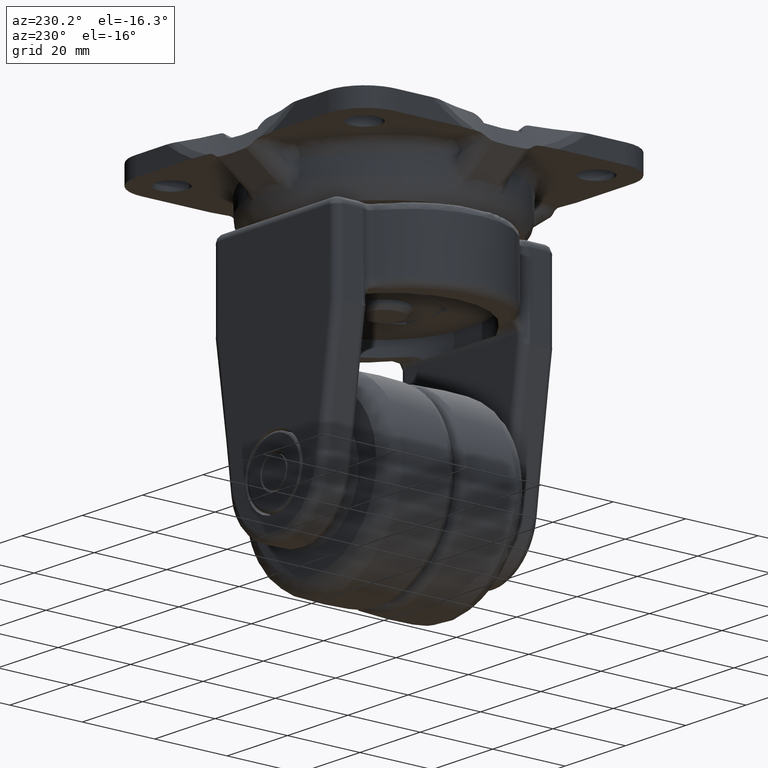
[diagram: clean part render]
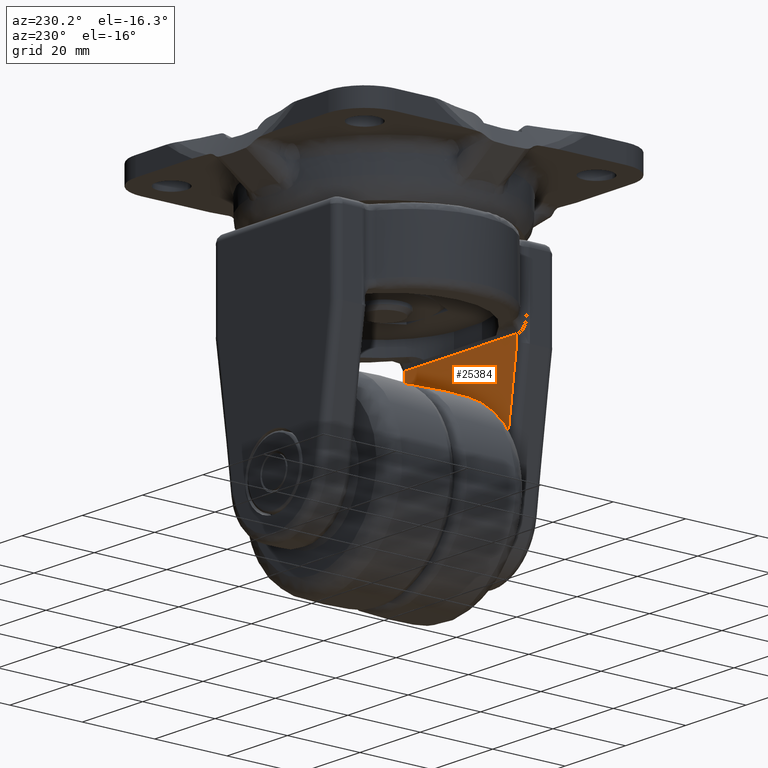
[diagram: same view with one face highlighted and labeled with its STEP entity id]
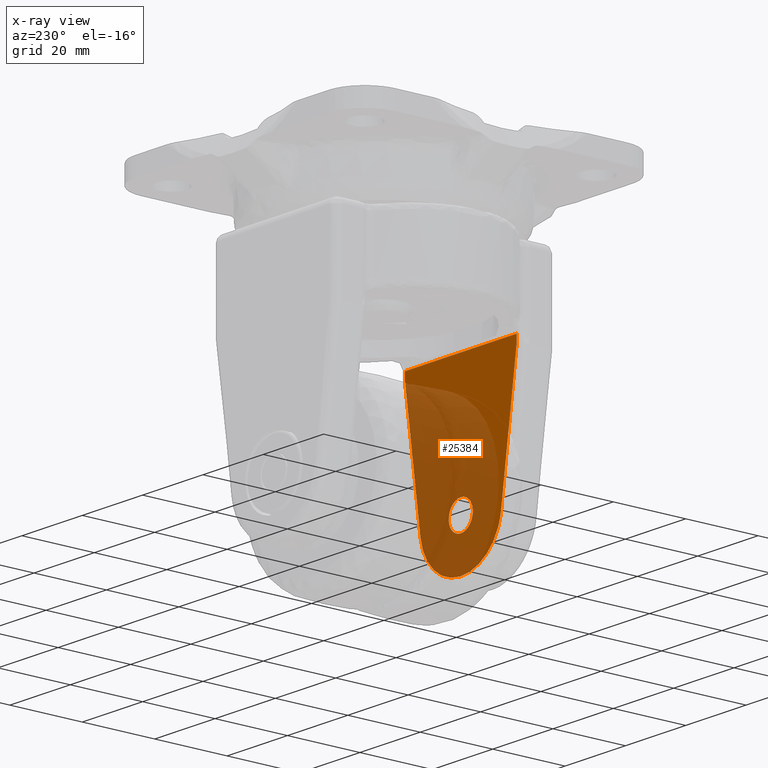
[diagram: x-ray of the same camera — body ghosted, the highlighted face saturated]
A machine part, auxiliary view. The second image highlights one B-rep face of the part: STEP entity #25384.
The next image is the same camera in x-ray: the body ghosted, the highlighted face saturated — about 67% of this face is hidden behind the body in this view.
In plain terms, the highlighted face is a freeform B-spline surface patch.
Its self-contained STEP definition (entity closure, byte-faithful):
#23616=CARTESIAN_POINT('',(18.500000000000000,-21.199999999999999,-20.994779767261100));
#23617=VERTEX_POINT('',#23616);
#24502=CARTESIAN_POINT('',(-3.992539544225150,-21.199999999999999,-56.755811573236052));
#24503=VERTEX_POINT('',#24502);
#24509=CARTESIAN_POINT('',(0.0,-21.199999999999999,-53.000000000000007));
#24510=VERTEX_POINT('',#24509);
#24511=CARTESIAN_POINT('',(0.0,-21.199999999999999,-53.000000000000007));
#24512=CARTESIAN_POINT('',(-3.762829679332612,-21.200000000000003,-53.000000000000128));
#24513=CARTESIAN_POINT('',(-3.992539544225150,-21.199999999999996,-56.755811573236052));
#24521=(BOUNDED_CURVE()B_SPLINE_CURVE(2,(#24511,#24512,#24513),.UNSPECIFIED.,.F.,.U.)B_SPLINE_CURVE_WITH_KNOTS((3,3),(0.500000000000000,0.739333209936624),.UNSPECIFIED.)CURVE()GEOMETRIC_REPRESENTATION_ITEM()RATIONAL_B_SPLINE_CURVE((1.0,0.719603703090825,0.976072572530575))REPRESENTATION_ITEM(''));
#24522=EDGE_CURVE('',#24510,#24503,#24521,.T.);
#24524=CARTESIAN_POINT('',(3.992539544225150,-21.199999999999999,-57.244188426763948));
#24525=VERTEX_POINT('',#24524);
#24526=CARTESIAN_POINT('',(3.992539544225150,-21.199999999999999,-57.244188426763948));
#24527=CARTESIAN_POINT('',(3.999999999995945,-21.200000000000003,-57.122208179471571));
#24528=CARTESIAN_POINT('',(3.999999999996008,-21.199999999999999,-56.999999999999737));
#24529=CARTESIAN_POINT('',(3.999999999998065,-21.200000000000003,-52.999999999999879));
#24530=CARTESIAN_POINT('',(0.0,-21.199999999999999,-53.000000000000007));
#24538=(BOUNDED_CURVE()B_SPLINE_CURVE(2,(#24526,#24527,#24528,#24529,#24530),.UNSPECIFIED.,.F.,.U.)B_SPLINE_CURVE_WITH_KNOTS((3,2,3),(0.239333209936624,0.250000000000000,0.500000000000000),.UNSPECIFIED.)CURVE()GEOMETRIC_REPRESENTATION_ITEM()RATIONAL_B_SPLINE_CURVE((0.976072572530575,0.987503078095722,1.0,0.707106781186548,1.0))REPRESENTATION_ITEM(''));
#24539=EDGE_CURVE('',#24525,#24510,#24538,.T.);
#24569=CARTESIAN_POINT('',(0.0,-21.199999999999999,-61.0));
#24570=VERTEX_POINT('',#24569);
#24571=CARTESIAN_POINT('',(0.0,-21.199999999999999,-61.0));
#24572=CARTESIAN_POINT('',(3.762829679332619,-21.200000000000003,-60.999999999999879));
#24573=CARTESIAN_POINT('',(3.992539544225150,-21.200000000000003,-57.244188426763948));
#24581=(BOUNDED_CURVE()B_SPLINE_CURVE(2,(#24571,#24572,#24573),.UNSPECIFIED.,.F.,.U.)B_SPLINE_CURVE_WITH_KNOTS((3,3),(0.0,0.239333209936625),.UNSPECIFIED.)CURVE()GEOMETRIC_REPRESENTATION_ITEM()RATIONAL_B_SPLINE_CURVE((1.0,0.719603703090825,0.976072572530576))REPRESENTATION_ITEM(''));
#24582=EDGE_CURVE('',#24570,#24525,#24581,.T.);
#24584=CARTESIAN_POINT('',(-3.992539544225150,-21.199999999999996,-56.755811573236052));
#24585=CARTESIAN_POINT('',(-3.999999999995945,-21.199999999999999,-56.877791820528437));
#24586=CARTESIAN_POINT('',(-3.999999999996008,-21.199999999999999,-57.000000000000249));
#24587=CARTESIAN_POINT('',(-3.999999999998065,-21.200000000000003,-61.000000000000107));
#24588=CARTESIAN_POINT('',(0.0,-21.199999999999999,-61.0));
#24596=(BOUNDED_CURVE()B_SPLINE_CURVE(2,(#24584,#24585,#24586,#24587,#24588),.UNSPECIFIED.,.F.,.U.)B_SPLINE_CURVE_WITH_KNOTS((3,2,3),(0.739333209936624,0.750000000000000,1.0),.UNSPECIFIED.)CURVE()GEOMETRIC_REPRESENTATION_ITEM()RATIONAL_B_SPLINE_CURVE((0.976072572530575,0.987503078095722,1.0,0.707106781186548,1.0))REPRESENTATION_ITEM(''));
#24597=EDGE_CURVE('',#24503,#24570,#24596,.T.);
#25114=CARTESIAN_POINT('',(-13.362911929339861,-21.199999999999999,-58.919006192982799));
#25115=VERTEX_POINT('',#25114);
#25128=CARTESIAN_POINT('',(13.362911337943199,-21.199999999999999,-58.919005827018402));
#25129=VERTEX_POINT('',#25128);
#25130=CARTESIAN_POINT('',(13.362911337943199,-21.199999999999999,-58.919005827018402));
#25131=CARTESIAN_POINT('',(13.234577945426340,-21.199999999999989,-59.813597946222259));
#25132=CARTESIAN_POINT('',(12.857885183438389,-21.200000000000021,-61.331894511992623));
#25133=CARTESIAN_POINT('',(12.064505193715361,-21.199999999999989,-63.127745132407341));
#25134=CARTESIAN_POINT('',(11.195985918979799,-21.200000000000021,-64.599388907436037));
#25135=CARTESIAN_POINT('',(9.976998097529371,-21.199999999999928,-66.202184981178803));
#25136=CARTESIAN_POINT('',(8.339335678577275,-21.200000000000070,-67.703379263088038));
#25137=CARTESIAN_POINT('',(6.262079152029160,-21.199999999999939,-69.032011668563982));
#25138=CARTESIAN_POINT('',(4.404245677334092,-21.200000000000031,-69.821145379441177));
#25139=CARTESIAN_POINT('',(2.404242123824782,-21.199999999999999,-70.322088715268421));
#25140=CARTESIAN_POINT('',(0.754400195967694,-21.199999999999999,-70.516268676718227));
#25141=CARTESIAN_POINT('',(-1.106084549063058,-21.199999999999999,-70.495522962855901));
#25142=CARTESIAN_POINT('',(-2.850227564163199,-21.200000000000010,-70.240750080631827));
#25143=CARTESIAN_POINT('',(-4.684925333772995,-21.199999999999989,-69.704191950572408));
#25144=CARTESIAN_POINT('',(-6.294881442014091,-21.199999999999989,-68.988303327259715));
#25145=CARTESIAN_POINT('',(-7.965065955595631,-21.200000000000021,-67.959041090872915));
#25146=CARTESIAN_POINT('',(-9.394108636629774,-21.199999999999982,-66.761861365830100));
#25147=CARTESIAN_POINT('',(-10.599571930504400,-21.200000000000060,-65.410425069981557));
#25148=CARTESIAN_POINT('',(-11.638544962318200,-21.199999999999761,-63.927886182621307));
#25149=CARTESIAN_POINT('',(-12.714828984186200,-21.200000000000681,-61.818510832874793));
#25150=CARTESIAN_POINT('',(-13.206190880590389,-21.199999999999338,-60.012438514543753));
#25151=CARTESIAN_POINT('',(-13.362911929339861,-21.199999999999999,-58.919006192982799));
#25152=B_SPLINE_CURVE_WITH_KNOTS('',3,(#25130,#25131,#25132,#25133,#25134,#25135,#25136,#25137,#25138,#25139,#25140,#25141,#25142,#25143,#25144,#25145,#25146,#25147,#25148,#25149,#25150,#25151),.UNSPECIFIED.,.F.,.U.,(4,1,1,1,1,1,1,1,1,1,1,1,1,1,1,1,1,1,1,4),(0.000000026043359,2.711234280657628,4.669453323810579,5.874457599139383,7.832617096478263,10.694566059163810,12.502113738553160,15.213408024668480,16.719707122286898,18.677821862833358,20.184062503029399,22.292831144739139,23.949734628021702,25.907924690788050,27.564825071048670,29.824250815707419,31.481166887103150,32.987449750059326,35.246892970492738,38.560644179830312),.UNSPECIFIED.);
#25153=EDGE_CURVE('',#25129,#25115,#25152,.T.);
#25186=CARTESIAN_POINT('',(18.500000000000000,-21.199999999999999,-23.147121216816199));
#25187=VERTEX_POINT('',#25186);
#25203=CARTESIAN_POINT('',(18.500000000000000,-21.199999999999999,-23.147121216816199));
#25204=CARTESIAN_POINT('',(13.362911337943199,-21.199999999999999,-58.919005827018402));
#25205=QUASI_UNIFORM_CURVE('',1,(#25203,#25204),.UNSPECIFIED.,.F.,.U.);
#25206=EDGE_CURVE('',#25187,#25129,#25205,.T.);
#25225=CARTESIAN_POINT('',(-18.500000000000000,-21.199999999999999,-23.147128180271000));
#25226=VERTEX_POINT('',#25225);
#25240=CARTESIAN_POINT('',(-13.362911929339861,-21.199999999999999,-58.919006192982799));
#25241=CARTESIAN_POINT('',(-18.500000000000000,-21.199999999999999,-23.147128180271000));
#25242=QUASI_UNIFORM_CURVE('',1,(#25240,#25241),.UNSPECIFIED.,.F.,.U.);
#25243=EDGE_CURVE('',#25115,#25226,#25242,.T.);
#25264=CARTESIAN_POINT('',(18.500000000000000,-21.199999999999999,-20.994779767261100));
#25265=CARTESIAN_POINT('',(18.500000000000000,-21.199999999999999,-23.147121216816199));
#25266=QUASI_UNIFORM_CURVE('',1,(#25264,#25265),.UNSPECIFIED.,.F.,.U.);
#25267=EDGE_CURVE('',#23617,#25187,#25266,.T.);
#25292=CARTESIAN_POINT('',(-18.500000000000000,-21.199999999999999,-20.994779767261100));
#25293=VERTEX_POINT('',#25292);
#25332=CARTESIAN_POINT('',(-18.500000000000000,-21.199999999999999,-23.147128180271000));
#25333=CARTESIAN_POINT('',(-18.500000000000000,-21.199999999999999,-20.994779767261100));
#25334=QUASI_UNIFORM_CURVE('',1,(#25332,#25333),.UNSPECIFIED.,.F.,.U.);
#25335=EDGE_CURVE('',#25226,#25293,#25334,.T.);
#25343=CARTESIAN_POINT('',(-20.348149928286819,-21.199999999999999,-72.972785654674482));
#25344=CARTESIAN_POINT('',(20.348150920704160,-21.199999999999999,-72.972785654674482));
#25345=CARTESIAN_POINT('',(-20.348149928286819,-21.199999999999999,-18.521992784753039));
#25346=CARTESIAN_POINT('',(20.348150920704160,-21.199999999999999,-18.521992784753039));
#25347=B_SPLINE_SURFACE_WITH_KNOTS('',1,1,((#25343,#25345),(#25344,#25346)),.UNSPECIFIED.,.F.,.F.,.U.,(2,2),(2,2),(0.0,40.696300848990980),(0.0,54.450792869921443),.UNSPECIFIED.);
#25348=ORIENTED_EDGE('',*,*,#25335,.T.);
#25349=CARTESIAN_POINT('',(-18.045771285260649,-21.199999999999999,-21.0));
#25350=VERTEX_POINT('',#25349);
#25351=CARTESIAN_POINT('',(-18.500000000000000,-21.199999999999999,-20.994779767261100));
#25352=CARTESIAN_POINT('',(-18.348611193222681,-21.199999999999999,-20.998326654997911));
#25353=CARTESIAN_POINT('',(-18.197200854717391,-21.199999999999999,-20.999999999999989));
#25354=CARTESIAN_POINT('',(-18.045771285260649,-21.199999999999999,-21.0));
#25355=QUASI_UNIFORM_CURVE('',3,(#25351,#25352,#25353,#25354),.UNSPECIFIED.,.F.,.U.);
#25356=EDGE_CURVE('',#25293,#25350,#25355,.T.);
#25357=ORIENTED_EDGE('',*,*,#25356,.T.);
#25358=CARTESIAN_POINT('',(18.045771285260550,-21.199999999999999,-21.0));
#25359=VERTEX_POINT('',#25358);
#25360=CARTESIAN_POINT('',(-18.045771285260649,-21.199999999999999,-21.0));
#25361=CARTESIAN_POINT('',(18.045771285260550,-21.199999999999999,-21.0));
#25362=QUASI_UNIFORM_CURVE('',1,(#25360,#25361),.UNSPECIFIED.,.F.,.U.);
#25363=EDGE_CURVE('',#25350,#25359,#25362,.T.);
#25364=ORIENTED_EDGE('',*,*,#25363,.T.);
#25365=CARTESIAN_POINT('',(18.045771285260550,-21.199999999999999,-21.0));
#25366=CARTESIAN_POINT('',(18.197200854717330,-21.199999999999999,-20.999999999999989));
#25367=CARTESIAN_POINT('',(18.348611193222649,-21.199999999999999,-20.998326654997921));
#25368=CARTESIAN_POINT('',(18.500000000000000,-21.199999999999999,-20.994779767261100));
#25369=QUASI_UNIFORM_CURVE('',3,(#25365,#25366,#25367,#25368),.UNSPECIFIED.,.F.,.U.);
#25370=EDGE_CURVE('',#25359,#23617,#25369,.T.);
#25371=ORIENTED_EDGE('',*,*,#25370,.T.);
#25372=ORIENTED_EDGE('',*,*,#25267,.T.);
#25373=ORIENTED_EDGE('',*,*,#25206,.T.);
#25374=ORIENTED_EDGE('',*,*,#25153,.T.);
#25375=ORIENTED_EDGE('',*,*,#25243,.T.);
#25376=EDGE_LOOP('',(#25348,#25357,#25364,#25371,#25372,#25373,#25374,#25375));
#25377=FACE_OUTER_BOUND('',#25376,.T.);
#25378=ORIENTED_EDGE('',*,*,#24522,.T.);
#25379=ORIENTED_EDGE('',*,*,#24597,.T.);
#25380=ORIENTED_EDGE('',*,*,#24582,.T.);
#25381=ORIENTED_EDGE('',*,*,#24539,.T.);
#25382=EDGE_LOOP('',(#25378,#25379,#25380,#25381));
#25383=FACE_BOUND('',#25382,.T.);
#25384=ADVANCED_FACE('',(#25377,#25383),#25347,.F.);